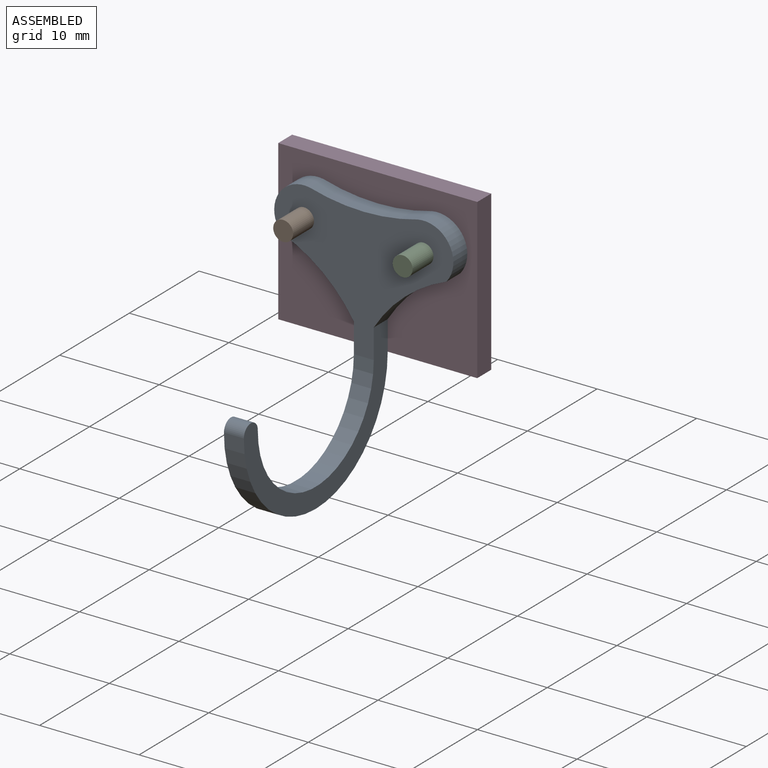
[diagram: assembled view]
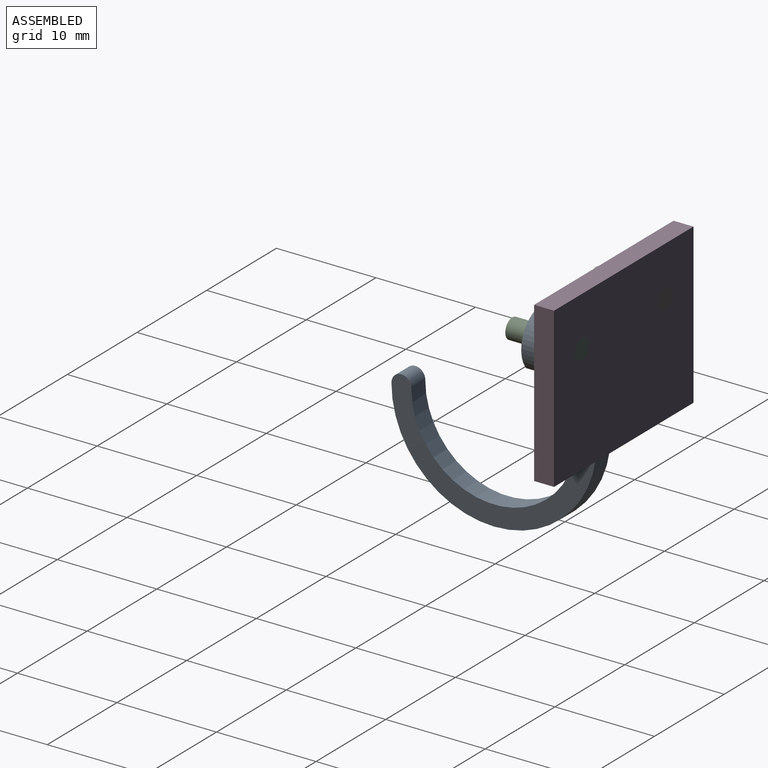
[diagram: assembled view, second angle]
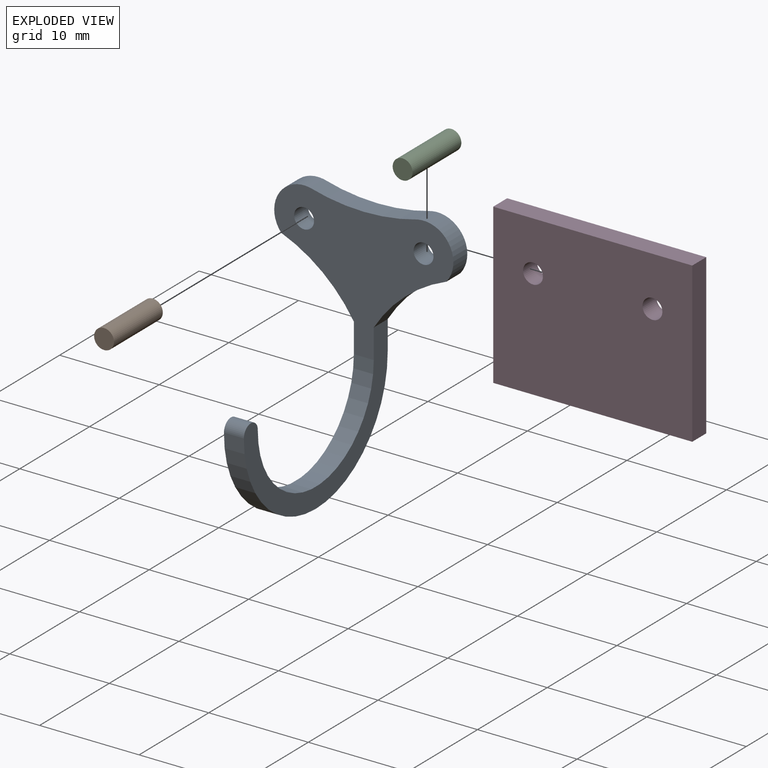
[diagram: exploded view]
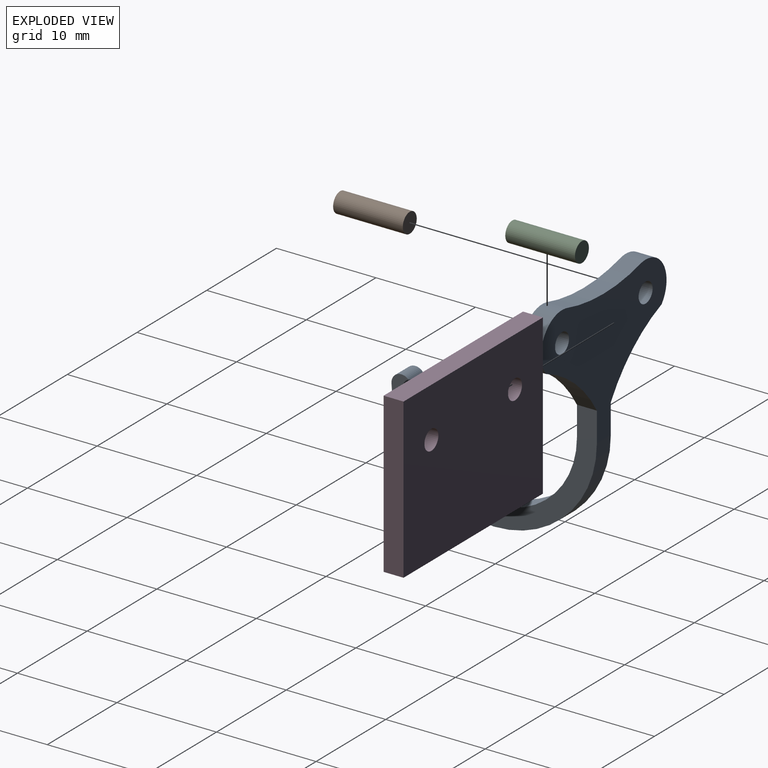
[diagram: exploded view, second angle]
ASSEMBLY  parts=4 mates=3
PART A: 14 faces, bbox 18x20.6x24.3 mm
  f0: cylinder r=20mm len=10.88mm, axis (0,1,0), area 22mm2, adj f1,f8,f9,f10
  f1: cylinder r=3mm len=4.93mm, axis (0,1,0), area 14.7mm2, adj f0,f2,f9,f10
  f2: cylinder r=15mm len=7.3mm, axis (0,1,0), area 19.4mm2, adj f1,f3,f9,f10
  f3: plane 20.64x13.29mm, normal (-1,0,0), area 66.1mm2, adj f2,f9,f10,f11,f12,f13
  f4: plane 20.64x13.29mm, normal (1,0,0), area 66.1mm2, adj f5,f9,f10,f11,f12,f13
  f5: cylinder r=15mm len=7.3mm, axis (0,1,0), area 19.4mm2, adj f4,f8,f9,f10
  f6: cylinder r=1mm len=2mm, axis (0,1,0), area 12.6mm2, adj f9,f10
  f7: cylinder r=1mm len=2mm, axis (0,1,0), area 12.6mm2, adj f9,f10
  f8: cylinder r=3mm len=4.93mm, axis (0,1,0), area 14.7mm2, adj f0,f5,f9,f10
  f9: plane 18x14mm, normal (0,-1,0), area 124.5mm2, adj f0,f1,f2,f3,f4,f5,f6,f7
  f10: plane 18x14mm, normal (0,1,0), area 124.5mm2, adj f0,f1,f2,f3,f4,f5,f6,f7
  f11: cylinder r=10.32mm len=20.64mm, axis (-1,0,0), area 64.9mm2, adj f3,f4,f10,f13
  f12: cylinder r=8.32mm len=16.64mm, axis (-1,0,0), area 52.4mm2, adj f3,f4,f9,f13
  f13: cylinder r=1mm len=2mm, axis (-1,0,0), area 6.3mm2, adj f3,f4,f11,f12
PART B: 3 faces, bbox 2x7x2 mm
  f0: cylinder r=1mm len=7mm, axis (0,1,0), area 44mm2, adj f1,f2
  f1: plane 2x2mm, normal (0,-1,0), area 3.1mm2, adj f0
  f2: plane 2x2mm, normal (0,1,0), area 3.1mm2, adj f0
PART C: same geometry as B
PART D: 8 faces, bbox 20x2x16 mm
  f0: plane 20x16mm, normal (0,-1,0), area 313.7mm2, adj f2,f3,f4,f5,f6,f7
  f1: plane 20x16mm, normal (0,1,0), area 313.7mm2, adj f2,f3,f4,f5,f6,f7
  f2: plane 20x2mm, normal (0,0,-1), area 40mm2, adj f0,f1,f3,f5
  f3: plane 16x2mm, normal (1,0,0), area 32mm2, adj f0,f1,f2,f4
  f4: plane 20x2mm, normal (0,0,1), area 40mm2, adj f0,f1,f3,f5
  f5: plane 16x2mm, normal (-1,0,0), area 32mm2, adj f0,f1,f2,f4
  f6: cylinder r=1mm len=2mm, axis (0,-1,0), area 12.6mm2, adj f0,f1
  f7: cylinder r=1mm len=2mm, axis (0,-1,0), area 12.6mm2, adj f0,f1
PLACE A t=(4.18,-3.16,0.52)mm
PLACE B t=(-11.82,-1.16,11.52)mm
PLACE C t=(0.18,-1.16,11.52)mm
PLACE D t=(4.18,-1.16,0.52)mm
MATE planar A.f1 <-> D.f7  axis (0,1,0) through (-11.82,-3.16,11.52)mm
MATE fastened C.f0 <-> D.f6  axis (0,1,0) through (0.18,-1.16,11.52)mm
MATE revolute B.f0 <-> D.f7  axis (0,1,0) through (-11.82,-1.16,11.52)mm
